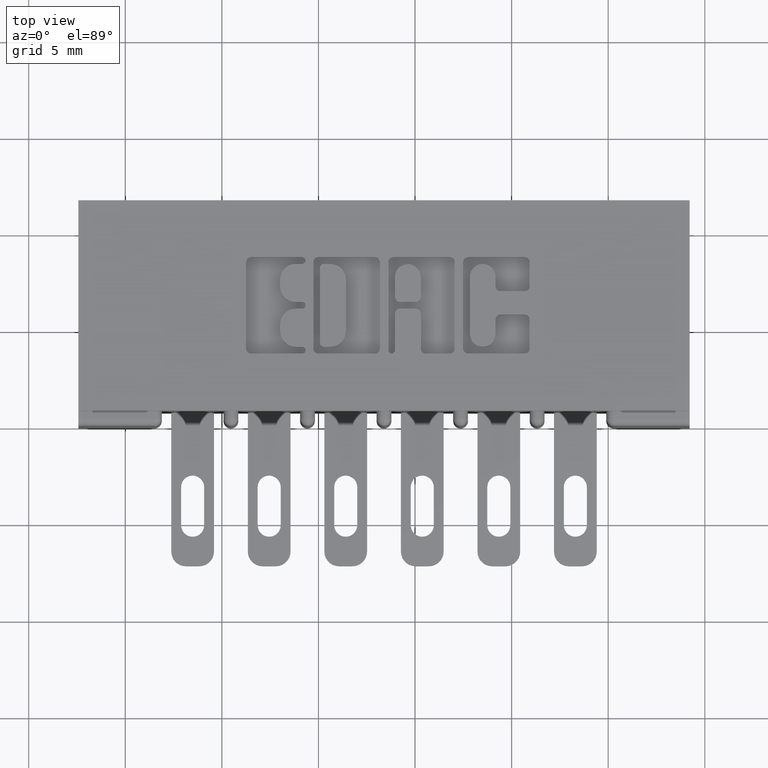
[diagram: clean part render]
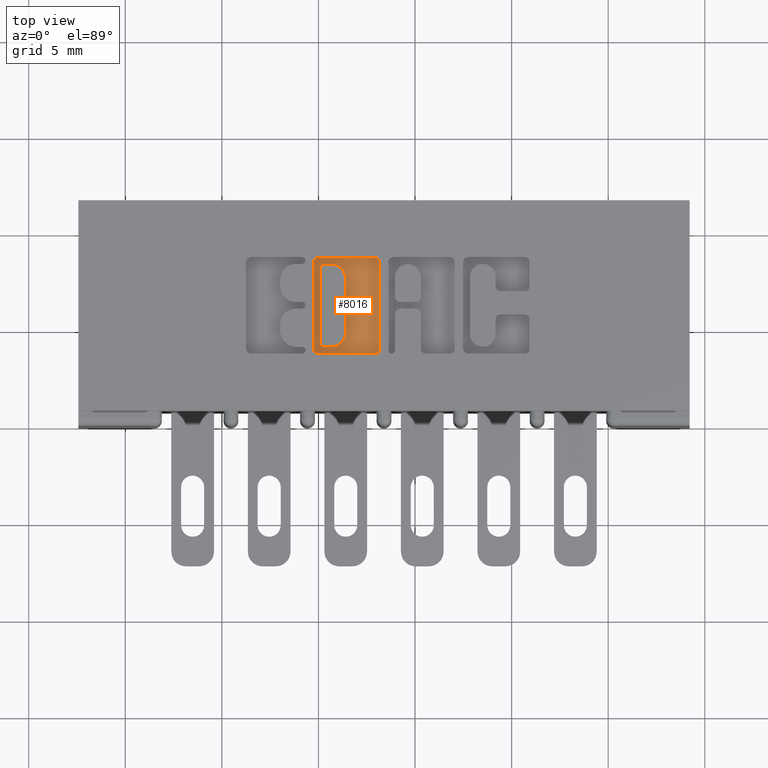
[diagram: same view with one face highlighted and labeled with its STEP entity id]
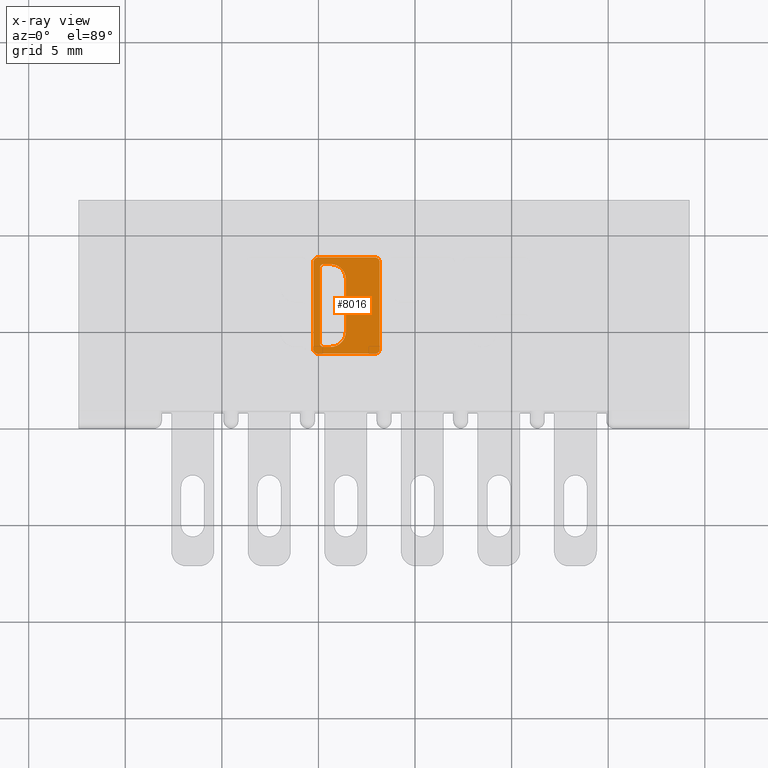
[diagram: x-ray of the same camera — body ghosted, the highlighted face saturated]
A machine part, top view. The second image highlights one B-rep face of the part: STEP entity #8016.
The next image is the same camera in x-ray: the body ghosted, the highlighted face saturated — about 0% of this face is hidden behind the body in this view.
In plain terms, the highlighted planar face has unit normal (0, 0, 1).
Its self-contained STEP definition (entity closure, byte-faithful):
#87 = CIRCLE ( 'NONE', #8637, 0.009815670203806891800 ) ;
#118 = FACE_BOUND ( 'NONE', #3597, .T. ) ;
#124 = DIRECTION ( 'NONE',  ( -0.0000000000000000000, 0.0000000000000000000, 1.000000000000000000 ) ) ;
#131 = VERTEX_POINT ( 'NONE', #3881 ) ;
#133 = CARTESIAN_POINT ( 'NONE',  ( 0.7906969780444990100, 0.3230437946100595500, -0.01000000000000000000 ) ) ;
#434 = ORIENTED_EDGE ( 'NONE', *, *, #856, .T. ) ;
#577 = DIRECTION ( 'NONE',  ( -0.0000000000000000000, 0.0000000000000000000, 1.000000000000000000 ) ) ;
#591 = CARTESIAN_POINT ( 'NONE',  ( 0.7975679471871667300, 0.3230437946100595500, -0.01000000000000000000 ) ) ;
#856 = EDGE_CURVE ( 'NONE', #6920, #2114, #6514, .T. ) ;
#988 = CIRCLE ( 'NONE', #9428, 0.009815670203840902800 ) ;
#1059 = EDGE_CURVE ( 'NONE', #8724, #6264, #1875, .T. ) ;
#1194 = AXIS2_PLACEMENT_3D ( 'NONE', #591, #6907, #6092 ) ;
#1217 = DIRECTION ( 'NONE',  ( -0.0000000000000000000, 0.0000000000000000000, 1.000000000000000000 ) ) ;
#1407 = VERTEX_POINT ( 'NONE', #3182 ) ;
#1437 = VERTEX_POINT ( 'NONE', #133 ) ;
#1546 = PLANE ( 'NONE',  #7301 ) ;
#1556 = VECTOR ( 'NONE', #3648, 39.37007874015748100 ) ;
#1654 = EDGE_CURVE ( 'NONE', #8180, #9155, #87, .T. ) ;
#1749 = EDGE_CURVE ( 'NONE', #8892, #5105, #6556, .T. ) ;
#1759 = CARTESIAN_POINT ( 'NONE',  ( 0.9124112885716693100, 0.3338410318342129300, -0.01000000000000000000 ) ) ;
#1875 = CIRCLE ( 'NONE', #7500, 0.03141014465217017300 ) ;
#1976 = EDGE_CURVE ( 'NONE', #5261, #5105, #3082, .T. ) ;
#2032 = DIRECTION ( 'NONE',  ( 1.000000000000000000, 0.0000000000000000000, 0.0000000000000000000 ) ) ;
#2071 = ORIENTED_EDGE ( 'NONE', *, *, #2122, .T. ) ;
#2078 = FACE_OUTER_BOUND ( 'NONE', #2457, .T. ) ;
#2114 = VERTEX_POINT ( 'NONE', #2725 ) ;
#2122 = EDGE_CURVE ( 'NONE', #1407, #8180, #8924, .T. ) ;
#2180 = CARTESIAN_POINT ( 'NONE',  ( 0.0000000000000000000, 0.3299147637527272700, -0.01000000000000000000 ) ) ;
#2209 = DIRECTION ( 'NONE',  ( 0.0000000000000000000, -1.000000000000000000, 0.0000000000000000000 ) ) ;
#2228 = CARTESIAN_POINT ( 'NONE',  ( 0.8432108136348439600, 0.0000000000000000000, -0.01000000000000000000 ) ) ;
#2335 = EDGE_CURVE ( 'NONE', #8724, #7845, #7807, .T. ) ;
#2348 = LINE ( 'NONE', #2649, #4414 ) ;
#2457 = EDGE_LOOP ( 'NONE', ( #9560, #5795, #434, #8343, #3593, #3007, #2071, #2547 ) ) ;
#2535 = CARTESIAN_POINT ( 'NONE',  ( 0.8118006689826720000, 0.2985046191005553700, -0.01000000000000000000 ) ) ;
#2547 = ORIENTED_EDGE ( 'NONE', *, *, #1654, .T. ) ;
#2548 = VECTOR ( 'NONE', #2209, 39.37007874015748100 ) ;
#2649 = CARTESIAN_POINT ( 'NONE',  ( 0.9124112885716693100, 0.0000000000000000000, -0.01000000000000000000 ) ) ;
#2651 = VERTEX_POINT ( 'NONE', #1759 ) ;
#2665 = CARTESIAN_POINT ( 'NONE',  ( 0.7975679471871667300, 0.3299147637527272700, -0.01000000000000000000 ) ) ;
#2725 = CARTESIAN_POINT ( 'NONE',  ( 0.7867707099630104600, 0.3436567020380538200, -0.01000000000000000000 ) ) ;
#2792 = DIRECTION ( 'NONE',  ( -1.000000000000000000, 0.0000000000000000000, 0.0000000000000000000 ) ) ;
#2902 = ORIENTED_EDGE ( 'NONE', *, *, #1976, .F. ) ;
#2917 = ORIENTED_EDGE ( 'NONE', *, *, #3662, .T. ) ;
#3007 = ORIENTED_EDGE ( 'NONE', *, *, #6146, .T. ) ;
#3008 = CARTESIAN_POINT ( 'NONE',  ( 0.8118006689826737800, 0.1610852362473171000, -0.01000000000000000000 ) ) ;
#3082 = CIRCLE ( 'NONE', #5176, 0.03141014465217194900 ) ;
#3134 = ORIENTED_EDGE ( 'NONE', *, *, #9241, .T. ) ;
#3182 = CARTESIAN_POINT ( 'NONE',  ( 0.7867707099629762700, 0.1473432979619860000, -0.01000000000000000000 ) ) ;
#3241 = EDGE_CURVE ( 'NONE', #131, #7845, #7310, .T. ) ;
#3468 = ORIENTED_EDGE ( 'NONE', *, *, #2335, .T. ) ;
#3593 = ORIENTED_EDGE ( 'NONE', *, *, #5351, .T. ) ;
#3597 = EDGE_LOOP ( 'NONE', ( #6845, #5887, #2902, #3134, #8468, #3468, #7619, #2917 ) ) ;
#3648 = DIRECTION ( 'NONE',  ( 1.000000000000000000, 0.0000000000000000000, 0.0000000000000000000 ) ) ;
#3662 = EDGE_CURVE ( 'NONE', #131, #1437, #4032, .T. ) ;
#3675 = CARTESIAN_POINT ( 'NONE',  ( 0.7906969780444990100, 0.0000000000000000000, -0.01000000000000000000 ) ) ;
#3686 = CARTESIAN_POINT ( 'NONE',  ( 0.7867707099630104600, 0.3338410318342129300, -0.01000000000000000000 ) ) ;
#3881 = CARTESIAN_POINT ( 'NONE',  ( 0.7906969780444990100, 0.1679562053899803200, -0.01000000000000000000 ) ) ;
#3892 = CARTESIAN_POINT ( 'NONE',  ( 0.7769550397591695700, 0.3338410318342129300, -0.01000000000000000000 ) ) ;
#3903 = CIRCLE ( 'NONE', #6440, 0.009815670203841039800 ) ;
#4032 = LINE ( 'NONE', #3675, #5502 ) ;
#4077 = EDGE_CURVE ( 'NONE', #8892, #1437, #4391, .T. ) ;
#4161 = DIRECTION ( 'NONE',  ( 1.000000000000000000, 0.0000000000000000000, 0.0000000000000000000 ) ) ;
#4174 = EDGE_CURVE ( 'NONE', #2651, #6920, #3903, .T. ) ;
#4206 = CARTESIAN_POINT ( 'NONE',  ( 0.8432108136348439600, 0.1924953808994873400, -0.01000000000000000000 ) ) ;
#4216 = DIRECTION ( 'NONE',  ( 0.0000000000000000000, 1.000000000000000000, -0.0000000000000000000 ) ) ;
#4339 = CARTESIAN_POINT ( 'NONE',  ( 0.9025956183678624000, 0.1571589681657927500, -0.01000000000000000000 ) ) ;
#4366 = LINE ( 'NONE', #5214, #2548 ) ;
#4391 = CIRCLE ( 'NONE', #1194, 0.006870969142667693000 ) ;
#4414 = VECTOR ( 'NONE', #4216, 39.37007874015748100 ) ;
#4415 = VECTOR ( 'NONE', #4161, 39.37007874015748100 ) ;
#4425 = VECTOR ( 'NONE', #10104, 39.37007874015748100 ) ;
#4519 = DIRECTION ( 'NONE',  ( 1.000000000000000000, 0.0000000000000000000, 0.0000000000000000000 ) ) ;
#4758 = DIRECTION ( 'NONE',  ( -1.000000000000000000, 0.0000000000000000000, 0.0000000000000000000 ) ) ;
#5105 = VERTEX_POINT ( 'NONE', #6455 ) ;
#5176 = AXIS2_PLACEMENT_3D ( 'NONE', #2535, #124, #6338 ) ;
#5214 = CARTESIAN_POINT ( 'NONE',  ( 0.7769550397591695700, 0.0000000000000000000, -0.01000000000000000000 ) ) ;
#5261 = VERTEX_POINT ( 'NONE', #8963 ) ;
#5351 = EDGE_CURVE ( 'NONE', #9900, #7612, #4366, .T. ) ;
#5392 = VECTOR ( 'NONE', #2792, 39.37007874015748100 ) ;
#5447 = DIRECTION ( 'NONE',  ( -0.0000000000000000000, 0.0000000000000000000, 1.000000000000000000 ) ) ;
#5481 = CARTESIAN_POINT ( 'NONE',  ( 0.7769550397591695700, 0.1571589681657927500, -0.01000000000000000000 ) ) ;
#5502 = VECTOR ( 'NONE', #6133, 39.37007874015748100 ) ;
#5608 = AXIS2_PLACEMENT_3D ( 'NONE', #9331, #5447, #9290 ) ;
#5795 = ORIENTED_EDGE ( 'NONE', *, *, #4174, .T. ) ;
#5887 = ORIENTED_EDGE ( 'NONE', *, *, #1749, .T. ) ;
#6092 = DIRECTION ( 'NONE',  ( 1.000000000000000000, 0.0000000000000000000, 0.0000000000000000000 ) ) ;
#6133 = DIRECTION ( 'NONE',  ( 0.0000000000000000000, 1.000000000000000000, -0.0000000000000000000 ) ) ;
#6146 = EDGE_CURVE ( 'NONE', #7612, #1407, #7152, .T. ) ;
#6251 = DIRECTION ( 'NONE',  ( 1.000000000000000000, 0.0000000000000000000, 0.0000000000000000000 ) ) ;
#6264 = VERTEX_POINT ( 'NONE', #4206 ) ;
#6338 = DIRECTION ( 'NONE',  ( 1.000000000000000000, 0.0000000000000000000, 0.0000000000000000000 ) ) ;
#6422 = CARTESIAN_POINT ( 'NONE',  ( 0.7975679471871622800, 0.1679562053899803200, -0.01000000000000000000 ) ) ;
#6440 = AXIS2_PLACEMENT_3D ( 'NONE', #9292, #9185, #4519 ) ;
#6455 = CARTESIAN_POINT ( 'NONE',  ( 0.8118006689826782200, 0.3299147637527272700, -0.01000000000000000000 ) ) ;
#6493 = AXIS2_PLACEMENT_3D ( 'NONE', #6422, #9926, #2032 ) ;
#6514 = LINE ( 'NONE', #7773, #9445 ) ;
#6556 = LINE ( 'NONE', #2180, #1556 ) ;
#6589 = CARTESIAN_POINT ( 'NONE',  ( 0.8118006689826737800, 0.1924953808994873400, -0.01000000000000000000 ) ) ;
#6808 = DIRECTION ( 'NONE',  ( 1.000000000000000000, 0.0000000000000000000, 0.0000000000000000000 ) ) ;
#6845 = ORIENTED_EDGE ( 'NONE', *, *, #4077, .F. ) ;
#6907 = DIRECTION ( 'NONE',  ( -0.0000000000000000000, 0.0000000000000000000, 1.000000000000000000 ) ) ;
#6920 = VERTEX_POINT ( 'NONE', #8518 ) ;
#6926 = CARTESIAN_POINT ( 'NONE',  ( 0.9124112885716693100, 0.1571589681657927500, -0.01000000000000000000 ) ) ;
#7029 = CARTESIAN_POINT ( 'NONE',  ( 0.0000000000000000000, 0.0000000000000000000, -0.01000000000000000000 ) ) ;
#7152 = CIRCLE ( 'NONE', #5608, 0.009815670203806754800 ) ;
#7169 = CARTESIAN_POINT ( 'NONE',  ( 0.9025956183678624000, 0.1473432979619860000, -0.01000000000000000000 ) ) ;
#7301 = AXIS2_PLACEMENT_3D ( 'NONE', #7029, #9325, #6251 ) ;
#7310 = CIRCLE ( 'NONE', #6493, 0.006870969142663185300 ) ;
#7500 = AXIS2_PLACEMENT_3D ( 'NONE', #6589, #9777, #8974 ) ;
#7612 = VERTEX_POINT ( 'NONE', #5481 ) ;
#7619 = ORIENTED_EDGE ( 'NONE', *, *, #3241, .F. ) ;
#7773 = CARTESIAN_POINT ( 'NONE',  ( 0.0000000000000000000, 0.3436567020380538200, -0.01000000000000000000 ) ) ;
#7807 = LINE ( 'NONE', #9823, #5392 ) ;
#7845 = VERTEX_POINT ( 'NONE', #9650 ) ;
#8016 = ADVANCED_FACE ( 'NONE', ( #118, #2078 ), #1546, .T. ) ;
#8130 = CARTESIAN_POINT ( 'NONE',  ( 0.0000000000000000000, 0.1473432979619860000, -0.01000000000000000000 ) ) ;
#8180 = VERTEX_POINT ( 'NONE', #7169 ) ;
#8343 = ORIENTED_EDGE ( 'NONE', *, *, #9847, .T. ) ;
#8468 = ORIENTED_EDGE ( 'NONE', *, *, #1059, .F. ) ;
#8518 = CARTESIAN_POINT ( 'NONE',  ( 0.9025956183678963700, 0.3436567020380538200, -0.01000000000000000000 ) ) ;
#8637 = AXIS2_PLACEMENT_3D ( 'NONE', #4339, #1217, #8966 ) ;
#8724 = VERTEX_POINT ( 'NONE', #3008 ) ;
#8892 = VERTEX_POINT ( 'NONE', #2665 ) ;
#8924 = LINE ( 'NONE', #8130, #4415 ) ;
#8963 = CARTESIAN_POINT ( 'NONE',  ( 0.8432108136348439600, 0.2985046191005553700, -0.01000000000000000000 ) ) ;
#8966 = DIRECTION ( 'NONE',  ( 1.000000000000000000, 0.0000000000000000000, 0.0000000000000000000 ) ) ;
#8974 = DIRECTION ( 'NONE',  ( 1.000000000000000000, 0.0000000000000000000, 0.0000000000000000000 ) ) ;
#9054 = LINE ( 'NONE', #2228, #4425 ) ;
#9155 = VERTEX_POINT ( 'NONE', #6926 ) ;
#9185 = DIRECTION ( 'NONE',  ( -0.0000000000000000000, 0.0000000000000000000, 1.000000000000000000 ) ) ;
#9241 = EDGE_CURVE ( 'NONE', #5261, #6264, #9054, .T. ) ;
#9290 = DIRECTION ( 'NONE',  ( 1.000000000000000000, 0.0000000000000000000, 0.0000000000000000000 ) ) ;
#9292 = CARTESIAN_POINT ( 'NONE',  ( 0.9025956183678282000, 0.3338410318342128200, -0.01000000000000000000 ) ) ;
#9325 = DIRECTION ( 'NONE',  ( -0.0000000000000000000, 0.0000000000000000000, 1.000000000000000000 ) ) ;
#9331 = CARTESIAN_POINT ( 'NONE',  ( 0.7867707099629762700, 0.1571589681657927500, -0.01000000000000000000 ) ) ;
#9428 = AXIS2_PLACEMENT_3D ( 'NONE', #3686, #577, #6808 ) ;
#9445 = VECTOR ( 'NONE', #4758, 39.37007874015748100 ) ;
#9495 = EDGE_CURVE ( 'NONE', #9155, #2651, #2348, .T. ) ;
#9560 = ORIENTED_EDGE ( 'NONE', *, *, #9495, .T. ) ;
#9650 = CARTESIAN_POINT ( 'NONE',  ( 0.7975679471871622800, 0.1610852362473171000, -0.01000000000000000000 ) ) ;
#9777 = DIRECTION ( 'NONE',  ( -0.0000000000000000000, 0.0000000000000000000, 1.000000000000000000 ) ) ;
#9823 = CARTESIAN_POINT ( 'NONE',  ( 0.0000000000000000000, 0.1610852362473171000, -0.01000000000000000000 ) ) ;
#9847 = EDGE_CURVE ( 'NONE', #2114, #9900, #988, .T. ) ;
#9900 = VERTEX_POINT ( 'NONE', #3892 ) ;
#9926 = DIRECTION ( 'NONE',  ( -0.0000000000000000000, 0.0000000000000000000, 1.000000000000000000 ) ) ;
#10104 = DIRECTION ( 'NONE',  ( 0.0000000000000000000, -1.000000000000000000, 0.0000000000000000000 ) ) ;